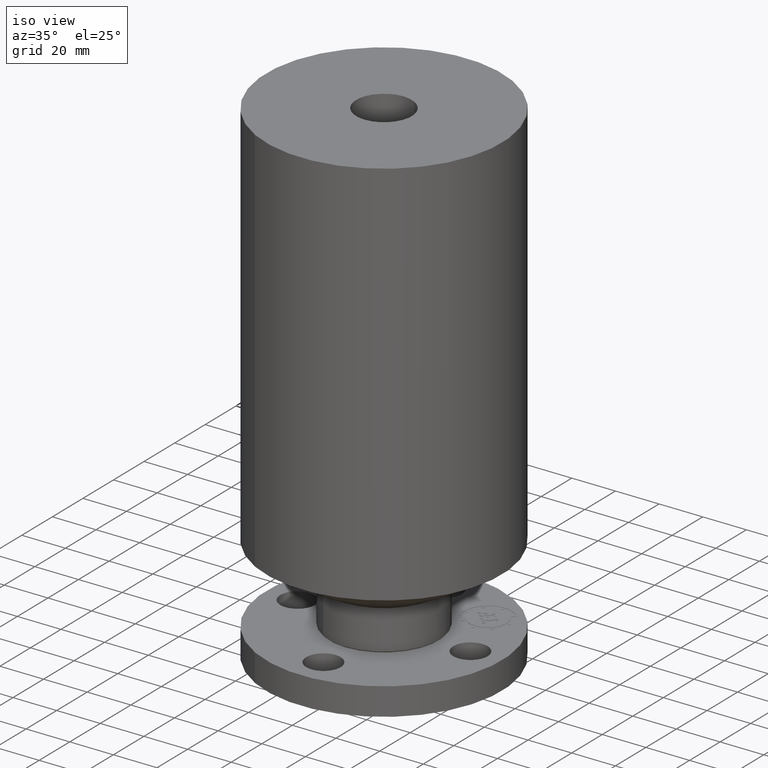
[diagram: clean part render]
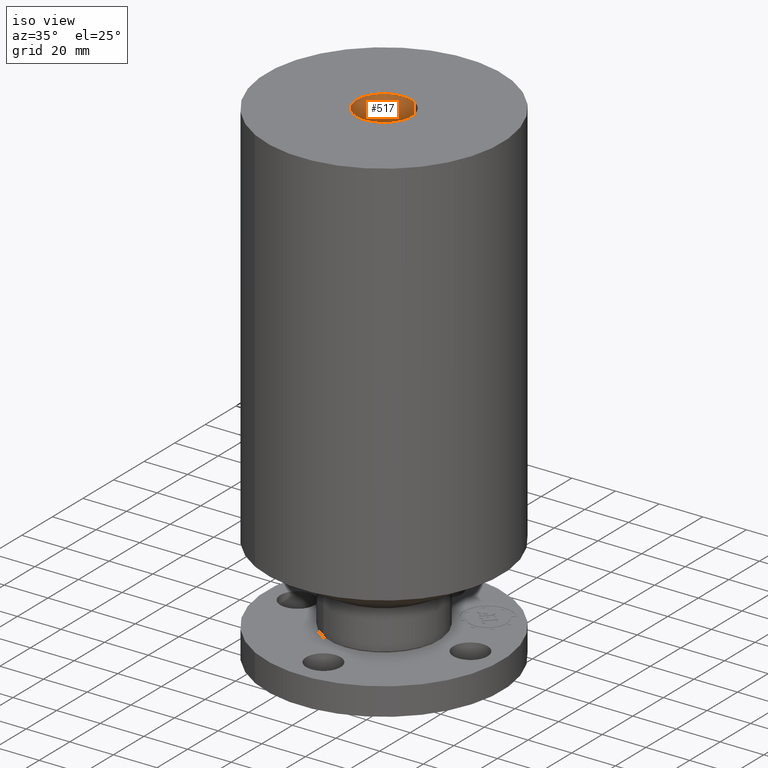
[diagram: same view with one face highlighted and labeled with its STEP entity id]
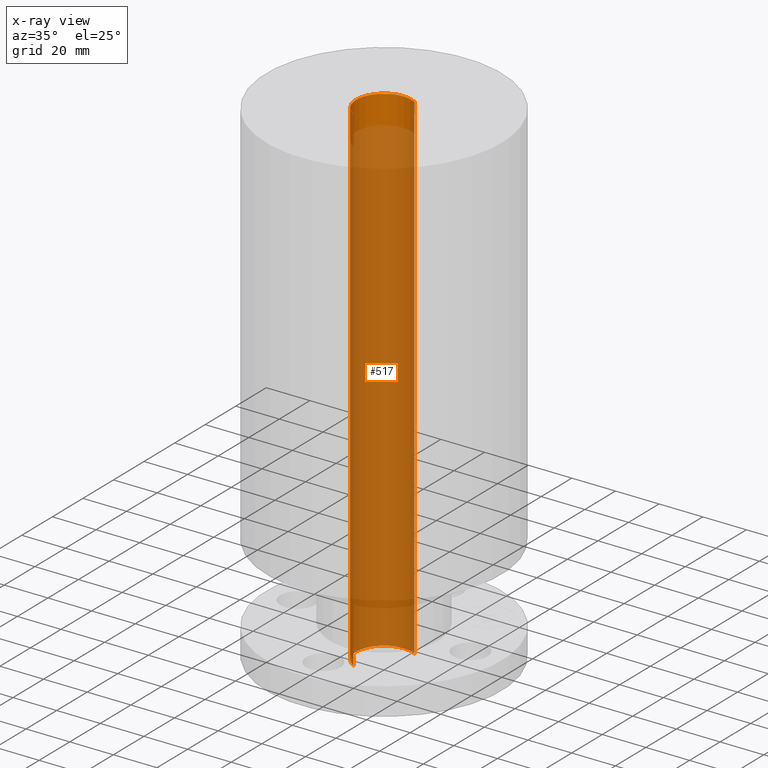
[diagram: x-ray of the same camera — body ghosted, the highlighted face saturated]
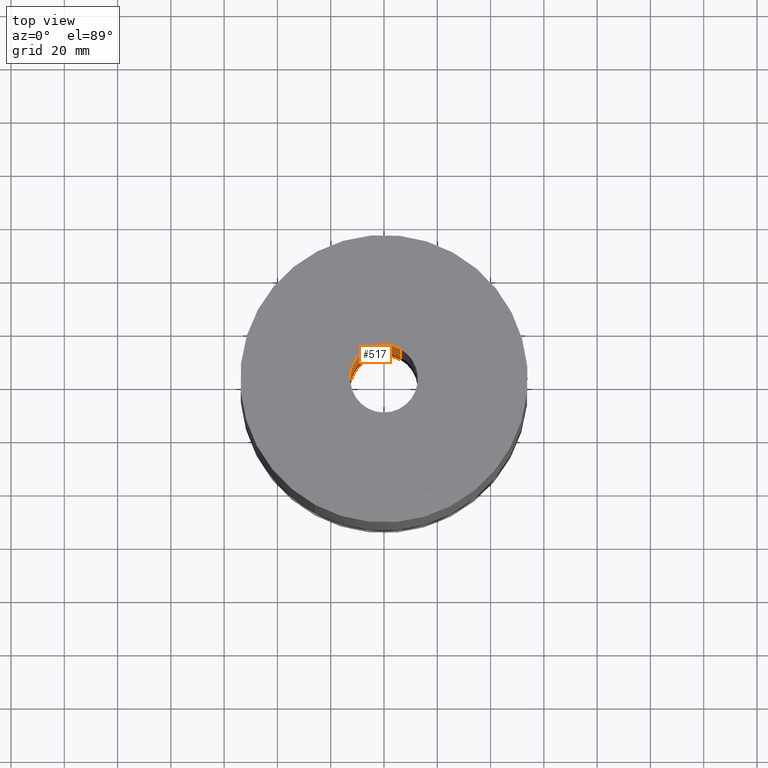
[diagram: same view with one face highlighted and labeled with its STEP entity id]
A machine part, iso view. The second image highlights one B-rep face of the part: STEP entity #517.
The next image is the same camera in x-ray: the body ghosted, the highlighted face saturated — about 94% of this face is hidden behind the body in this view.
A second angle (top view) of the same face is appended — the face is thin or edge-on in the first view.
In plain terms, the highlighted cylindrical surface (edge-blend (fillet) strip) has radius 12.7 mm, axis along (0, 0, -1).
Its self-contained STEP definition (entity closure, byte-faithful):
#458=AXIS2_PLACEMENT_3D('Circle Axis2P3D',#456,#457,$) ;
#478=AXIS2_PLACEMENT_3D('Cylinder Axis2P3D',#475,#476,#477) ;
#508=AXIS2_PLACEMENT_3D('Circle Axis2P3D',#506,#507,$) ;
#456=CARTESIAN_POINT('Axis2P3D Location',(0.,0.,8.93750000004)) ;
#460=CARTESIAN_POINT('Vertex',(-0.239712769303,-0.438791280947,8.93750000004)) ;
#462=CARTESIAN_POINT('Vertex',(0.239712769303,0.438791280947,8.93750000004)) ;
#475=CARTESIAN_POINT('Axis2P3D Location',(0.,0.,4.43750000002)) ;
#480=CARTESIAN_POINT('Line Origine',(0.239712769303,0.438791280947,4.43750000002)) ;
#484=CARTESIAN_POINT('Vertex',(0.239712769303,0.438791280947,-0.0625000000003)) ;
#491=CARTESIAN_POINT('Vertex',(-0.239712769303,-0.438791280947,-0.0625000000003)) ;
#494=CARTESIAN_POINT('Line Origine',(-0.239712769303,-0.438791280947,4.43750000002)) ;
#506=CARTESIAN_POINT('Axis2P3D Location',(0.,0.,-0.0625000000003)) ;
#457=DIRECTION('Axis2P3D Direction',(0.,0.,-0.0393700787402)) ;
#476=DIRECTION('Axis2P3D Direction',(0.,0.,-0.0393700787402)) ;
#477=DIRECTION('Axis2P3D XDirection',(-0.0188750212049,-0.0345504945626,0.)) ;
#481=DIRECTION('Vector Direction',(0.,0.,-0.0393700787402)) ;
#495=DIRECTION('Vector Direction',(0.,0.,-0.0393700787402)) ;
#507=DIRECTION('Axis2P3D Direction',(0.,0.,-0.0393700787402)) ;
#482=VECTOR('Line Direction',#481,0.0393700787402) ;
#496=VECTOR('Line Direction',#495,0.0393700787402) ;
#512=ORIENTED_EDGE('',*,*,#464,.F.) ;
#513=ORIENTED_EDGE('',*,*,#498,.T.) ;
#514=ORIENTED_EDGE('',*,*,#510,.T.) ;
#515=ORIENTED_EDGE('',*,*,#486,.F.) ;
#517=ADVANCED_FACE('PartBody',(#516),#479,.F.) ;
#459=CIRCLE('generated circle',#458,0.500000000002) ;
#509=CIRCLE('generated circle',#508,0.500000000002) ;
#479=CYLINDRICAL_SURFACE('generated cylinder',#478,0.500000000002) ;
#464=EDGE_CURVE('',#461,#463,#459,.T.) ;
#486=EDGE_CURVE('',#463,#485,#483,.T.) ;
#498=EDGE_CURVE('',#461,#492,#497,.T.) ;
#510=EDGE_CURVE('',#492,#485,#509,.T.) ;
#511=EDGE_LOOP('',(#512,#513,#514,#515)) ;
#516=FACE_OUTER_BOUND('',#511,.T.) ;
#483=LINE('Line',#480,#482) ;
#497=LINE('Line',#494,#496) ;
#461=VERTEX_POINT('',#460) ;
#463=VERTEX_POINT('',#462) ;
#485=VERTEX_POINT('',#484) ;
#492=VERTEX_POINT('',#491) ;